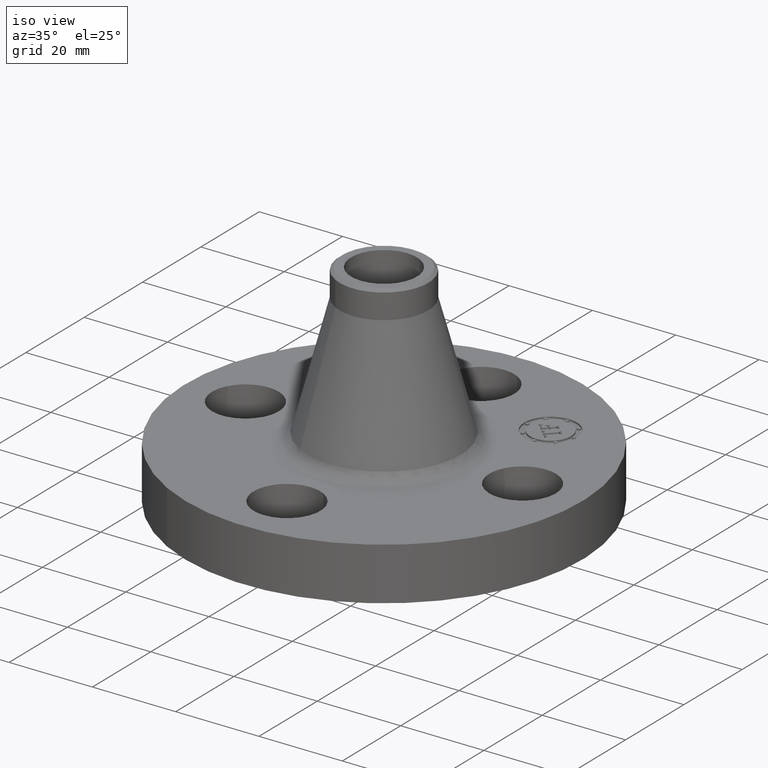
[diagram: clean part render]
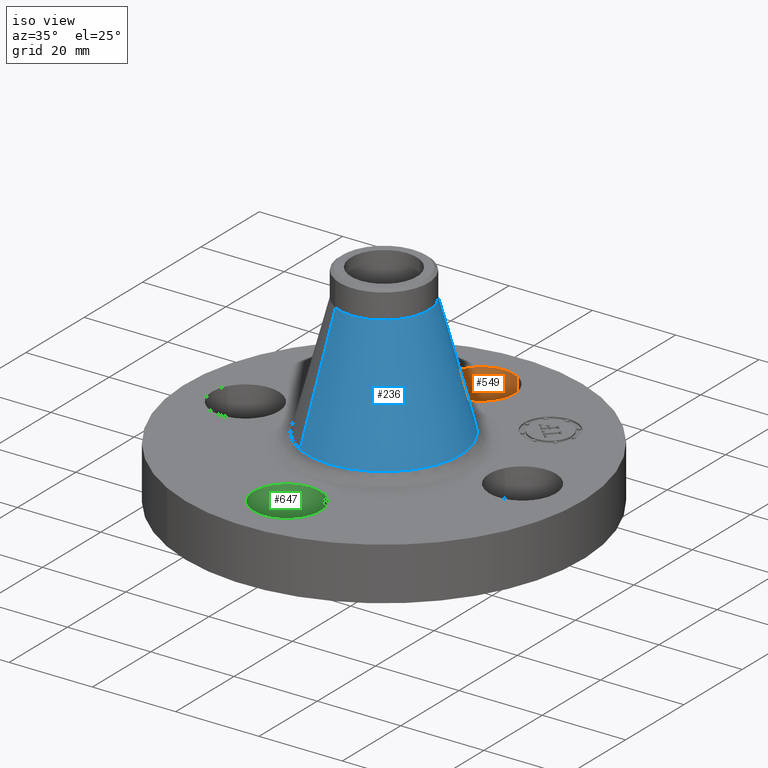
[diagram: same view with three faces highlighted in distinct colors, each labeled with its STEP entity id]
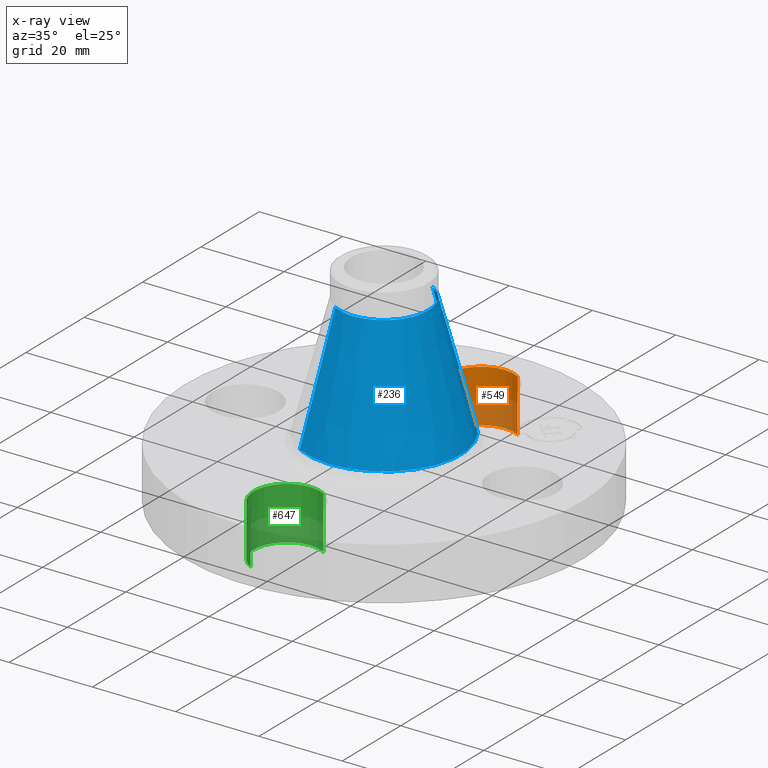
[diagram: x-ray of the same camera — body ghosted, the three highlighted faces saturated]
A machine part, iso view with three faces highlighted in distinct colors.
The next image is the same camera in x-ray (body ghosted, the three faces saturated) — at least one of them is partly hidden behind the body in this view.
Their STEP definitions:

[orange] entity #549 — the highlighted cylindrical surface (partial cylindrical patch) has radius 8.001 mm, axis along (0, 0, -1).
#502=AXIS2_PLACEMENT_3D('Circle Axis2P3D',#500,#501,$) ;
#522=AXIS2_PLACEMENT_3D('Cylinder Axis2P3D',#519,#520,#521) ;
#540=AXIS2_PLACEMENT_3D('Circle Axis2P3D',#538,#539,$) ;
#500=CARTESIAN_POINT('Axis2P3D Location',(-3.1470888887E-016,1.31000000001,0.)) ;
#504=CARTESIAN_POINT('Vertex',(-0.151019044661,1.03356149301,0.)) ;
#506=CARTESIAN_POINT('Vertex',(0.151019044661,1.586438507,0.)) ;
#519=CARTESIAN_POINT('Axis2P3D Location',(-2.40643096033E-016,1.31000000001,0.496062992128)) ;
#524=CARTESIAN_POINT('Line Origine',(-0.151019044661,1.03356149301,0.250000000001)) ;
#528=CARTESIAN_POINT('Vertex',(-0.151019044661,1.03356149301,0.500000000002)) ;
#531=CARTESIAN_POINT('Line Origine',(0.151019044661,1.586438507,0.250000000001)) ;
#535=CARTESIAN_POINT('Vertex',(0.151019044661,1.586438507,0.500000000002)) ;
#538=CARTESIAN_POINT('Axis2P3D Location',(-2.40643096033E-016,1.31000000001,0.500000000002)) ;
#501=DIRECTION('Axis2P3D Direction',(0.,0.,-0.0393700787402)) ;
#520=DIRECTION('Axis2P3D Direction',(0.,0.,-0.0393700787402)) ;
#521=DIRECTION('Axis2P3D XDirection',(0.0188750212049,0.0345504945626,0.)) ;
#525=DIRECTION('Vector Direction',(0.,0.,-0.0393700787402)) ;
#532=DIRECTION('Vector Direction',(0.,0.,-0.0393700787402)) ;
#539=DIRECTION('Axis2P3D Direction',(0.,0.,-0.0393700787402)) ;
#526=VECTOR('Line Direction',#525,0.0393700787402) ;
#533=VECTOR('Line Direction',#532,0.0393700787402) ;
#544=ORIENTED_EDGE('',*,*,#530,.F.) ;
#545=ORIENTED_EDGE('',*,*,#508,.T.) ;
#546=ORIENTED_EDGE('',*,*,#537,.T.) ;
#547=ORIENTED_EDGE('',*,*,#542,.F.) ;
#549=ADVANCED_FACE('PartBody',(#548),#523,.F.) ;
#503=CIRCLE('generated circle',#502,0.315000000001) ;
#541=CIRCLE('generated circle',#540,0.315000000001) ;
#523=CYLINDRICAL_SURFACE('generated cylinder',#522,0.315000000001) ;
#508=EDGE_CURVE('',#505,#507,#503,.T.) ;
#530=EDGE_CURVE('',#505,#529,#527,.F.) ;
#537=EDGE_CURVE('',#507,#536,#534,.F.) ;
#542=EDGE_CURVE('',#529,#536,#541,.T.) ;
#543=EDGE_LOOP('',(#544,#545,#546,#547)) ;
#548=FACE_OUTER_BOUND('',#543,.T.) ;
#527=LINE('Line',#524,#526) ;
#534=LINE('Line',#531,#533) ;
#505=VERTEX_POINT('',#504) ;
#507=VERTEX_POINT('',#506) ;
#529=VERTEX_POINT('',#528) ;
#536=VERTEX_POINT('',#535) ;

[blue] entity #236 — the highlighted conical surface has half-angle 14.896 deg.
#172=AXIS2_PLACEMENT_3D('Circle Axis2P3D',#170,#171,$) ;
#209=AXIS2_PLACEMENT_3D('Cone Axis2P3D',#206,#207,#208) ;
#220=AXIS2_PLACEMENT_3D('Circle Axis2P3D',#218,#219,$) ;
#167=CARTESIAN_POINT('Vertex',(0.3481995092,0.637374926297,0.589151710749)) ;
#170=CARTESIAN_POINT('Axis2P3D Location',(0.,0.,0.589151710749)) ;
#174=CARTESIAN_POINT('Vertex',(-0.3481995092,-0.637374926297,0.589151710749)) ;
#206=CARTESIAN_POINT('Axis2P3D Location',(0.,0.,1.74056033375)) ;
#211=CARTESIAN_POINT('Line Origine',(0.274779117707,0.502979801146,1.16485602225)) ;
#215=CARTESIAN_POINT('Vertex',(0.201358726215,0.368584675995,1.74056033375)) ;
#218=CARTESIAN_POINT('Axis2P3D Location',(0.,0.,1.74056033375)) ;
#222=CARTESIAN_POINT('Vertex',(-0.201358726215,-0.368584675995,1.74056033375)) ;
#225=CARTESIAN_POINT('Line Origine',(-0.274779117707,-0.502979801146,1.16485602225)) ;
#171=DIRECTION('Axis2P3D Direction',(0.,0.,-0.0393700787402)) ;
#207=DIRECTION('Axis2P3D Direction',(0.,0.,-0.0393700787402)) ;
#208=DIRECTION('Axis2P3D XDirection',(-0.0188750212049,-0.0345504945626,0.)) ;
#212=DIRECTION('Vector Direction',(0.00485218428163,0.008881863751,-0.0380469697087)) ;
#219=DIRECTION('Axis2P3D Direction',(0.,0.,-0.0393700787402)) ;
#226=DIRECTION('Vector Direction',(-0.00485218428163,-0.008881863751,-0.0380469697087)) ;
#213=VECTOR('Line Direction',#212,0.0393700787402) ;
#227=VECTOR('Line Direction',#226,0.0393700787402) ;
#231=ORIENTED_EDGE('',*,*,#176,.F.) ;
#232=ORIENTED_EDGE('',*,*,#217,.T.) ;
#233=ORIENTED_EDGE('',*,*,#224,.T.) ;
#234=ORIENTED_EDGE('',*,*,#229,.F.) ;
#236=ADVANCED_FACE('PartBody',(#235),#210,.T.) ;
#173=CIRCLE('generated circle',#172,0.726284857945) ;
#221=CIRCLE('generated circle',#220,0.420000000002) ;
#210=CONICAL_SURFACE('Cone',#209,0.420000000002,0.259988126159) ;
#176=EDGE_CURVE('',#168,#175,#173,.T.) ;
#217=EDGE_CURVE('',#168,#216,#214,.F.) ;
#224=EDGE_CURVE('',#216,#223,#221,.T.) ;
#229=EDGE_CURVE('',#175,#223,#228,.F.) ;
#230=EDGE_LOOP('',(#231,#232,#233,#234)) ;
#235=FACE_OUTER_BOUND('',#230,.T.) ;
#214=LINE('Line',#211,#213) ;
#228=LINE('Line',#225,#227) ;
#168=VERTEX_POINT('',#167) ;
#175=VERTEX_POINT('',#174) ;
#216=VERTEX_POINT('',#215) ;
#223=VERTEX_POINT('',#222) ;

[green] entity #647 — the highlighted cylindrical surface (partial cylindrical patch) has radius 8.001 mm, axis along (0, -0, -1).
#475=AXIS2_PLACEMENT_3D('Circle Axis2P3D',#473,#474,$) ;
#608=AXIS2_PLACEMENT_3D('Cylinder Axis2P3D',#605,#606,#607) ;
#638=AXIS2_PLACEMENT_3D('Circle Axis2P3D',#636,#637,$) ;
#468=CARTESIAN_POINT('Vertex',(0.151019044661,-1.03356149301,0.)) ;
#470=CARTESIAN_POINT('Vertex',(-0.151019044661,-1.586438507,0.)) ;
#473=CARTESIAN_POINT('Axis2P3D Location',(-1.74838271595E-016,-1.31000000001,0.)) ;
#605=CARTESIAN_POINT('Axis2P3D Location',(-1.99526869207E-016,-1.31000000001,0.496062992128)) ;
#610=CARTESIAN_POINT('Line Origine',(0.151019044661,-1.03356149301,0.250000000001)) ;
#614=CARTESIAN_POINT('Vertex',(0.151019044661,-1.03356149301,0.500000000002)) ;
#617=CARTESIAN_POINT('Line Origine',(-0.151019044661,-1.586438507,0.250000000001)) ;
#621=CARTESIAN_POINT('Vertex',(-0.151019044661,-1.586438507,0.500000000002)) ;
#636=CARTESIAN_POINT('Axis2P3D Location',(-1.99526869207E-016,-1.31000000001,0.500000000002)) ;
#474=DIRECTION('Axis2P3D Direction',(0.,0.,-0.0393700787402)) ;
#606=DIRECTION('Axis2P3D Direction',(0.,-0.,-0.0393700787402)) ;
#607=DIRECTION('Axis2P3D XDirection',(-0.0188750212049,-0.0345504945626,0.)) ;
#611=DIRECTION('Vector Direction',(0.,0.,-0.0393700787402)) ;
#618=DIRECTION('Vector Direction',(0.,0.,-0.0393700787402)) ;
#637=DIRECTION('Axis2P3D Direction',(0.,-0.,-0.0393700787402)) ;
#612=VECTOR('Line Direction',#611,0.0393700787402) ;
#619=VECTOR('Line Direction',#618,0.0393700787402) ;
#642=ORIENTED_EDGE('',*,*,#623,.F.) ;
#643=ORIENTED_EDGE('',*,*,#477,.T.) ;
#644=ORIENTED_EDGE('',*,*,#616,.T.) ;
#645=ORIENTED_EDGE('',*,*,#640,.F.) ;
#647=ADVANCED_FACE('PartBody',(#646),#609,.F.) ;
#476=CIRCLE('generated circle',#475,0.315000000001) ;
#639=CIRCLE('generated circle',#638,0.315000000001) ;
#609=CYLINDRICAL_SURFACE('generated cylinder',#608,0.315000000001) ;
#477=EDGE_CURVE('',#471,#469,#476,.T.) ;
#616=EDGE_CURVE('',#469,#615,#613,.F.) ;
#623=EDGE_CURVE('',#471,#622,#620,.F.) ;
#640=EDGE_CURVE('',#622,#615,#639,.T.) ;
#641=EDGE_LOOP('',(#642,#643,#644,#645)) ;
#646=FACE_OUTER_BOUND('',#641,.T.) ;
#613=LINE('Line',#610,#612) ;
#620=LINE('Line',#617,#619) ;
#469=VERTEX_POINT('',#468) ;
#471=VERTEX_POINT('',#470) ;
#615=VERTEX_POINT('',#614) ;
#622=VERTEX_POINT('',#621) ;